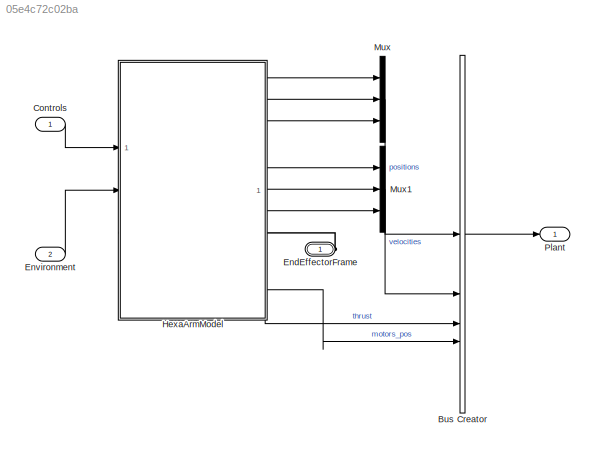
MODEL slx_05e4c72c02ba
KIND model
CONFIG AbsTol = auto
CONFIG EnableMultiTasking = off
CONFIG FixedStep = 0.01
CONFIG MaxStep = auto
CONFIG MinStep = auto
CONFIG RelTol = 1e-3
CONFIG SampleTimeConstraint = Unconstrained
CONFIG SolverName = ode4
CONFIG StartTime = 0.0
CONFIG StopTime = 200
BLOCK [BusCreator] Bus Creator
  DisplayOption = bar
  InheritFromInputs = on
  Inputs = 4
BLOCK [Inport] Controls
  OutDataTypeStr = Bus: ControlsBusDef
BLOCK [PMIOPort] EndEffectorFrame
  Side = Right
BLOCK [Inport] Environment
  OutDataTypeStr = Bus: EnvironmentBusDef
  Port = 2
BLOCK [SubSystem] HexaArmModel
  NameLocation = top
  PortSchema = {"entries":[{"content":{"sides":[{"content":{"connectorIds":["In1","In2"]},"type":"ConnectorPlacement.EquallySpacedRectSide","uuid":"2dc8ce6a-8c2d-483c-b9eb-4519b8adf1d0"},{"content":{"connectorIds":["Out1","Out2","Out3","Out4","Out5","Out6","LConn1","Out7","Out8"],"side":"RIGHT"},"type":"ConnectorPlacement.EquallySpacedRectSide","uuid":"8919d7d9-a4a6-435e-91a0-6baaf43bb5dd"},{"content":{"side":"T...<+412ch>
  ReferencedSubsystem = HexaArmModel
BLOCK [Mux] Mux
  DisplayOption = bar
  Inputs = 3
BLOCK [Mux] Mux1
  DisplayOption = bar
  Inputs = 3
BLOCK [Outport] Plant
  OutDataTypeStr = Bus: PlantBusDef
LINE Bus Creator:1 -> Plant:1
LINE Controls:1 -> HexaArmModel:1
LINE Environment:1 -> HexaArmModel:2
LINE HexaArmModel:1 -> Mux:1
LINE HexaArmModel:2 -> Mux:2
LINE HexaArmModel:3 -> Mux:3
LINE HexaArmModel:4 -> Mux1:1
LINE HexaArmModel:5 -> Mux1:2
LINE HexaArmModel:6 -> Mux1:3
LINE HexaArmModel:7 -> Bus Creator:3
LINE HexaArmModel:8 -> Bus Creator:4
LINE Mux1:1 -> Bus Creator:2
LINE Mux:1 -> Bus Creator:1
PLINE EndEffectorFrame:RConn1 -- HexaArmModel:LConn1
